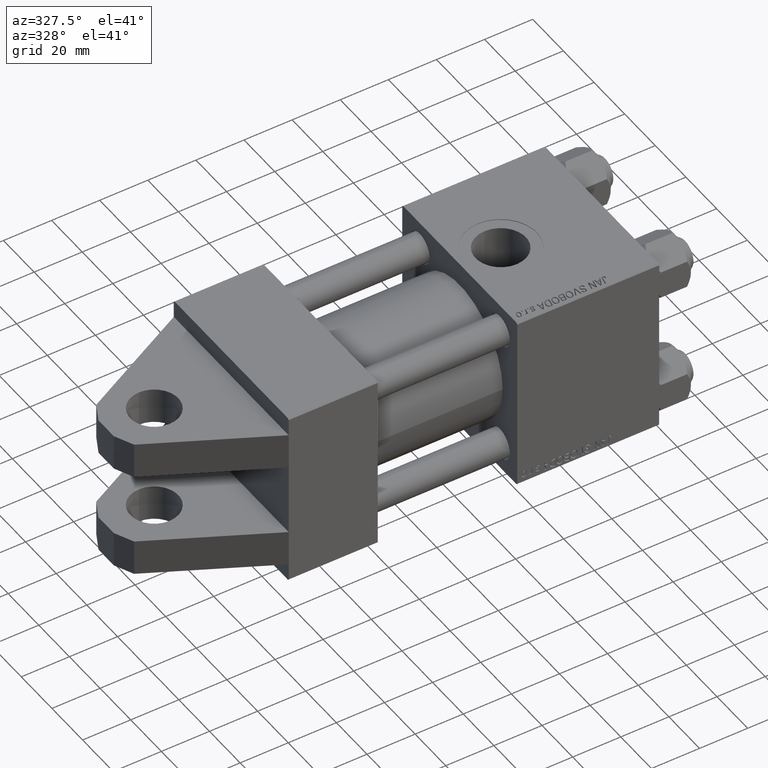
[diagram: clean part render]
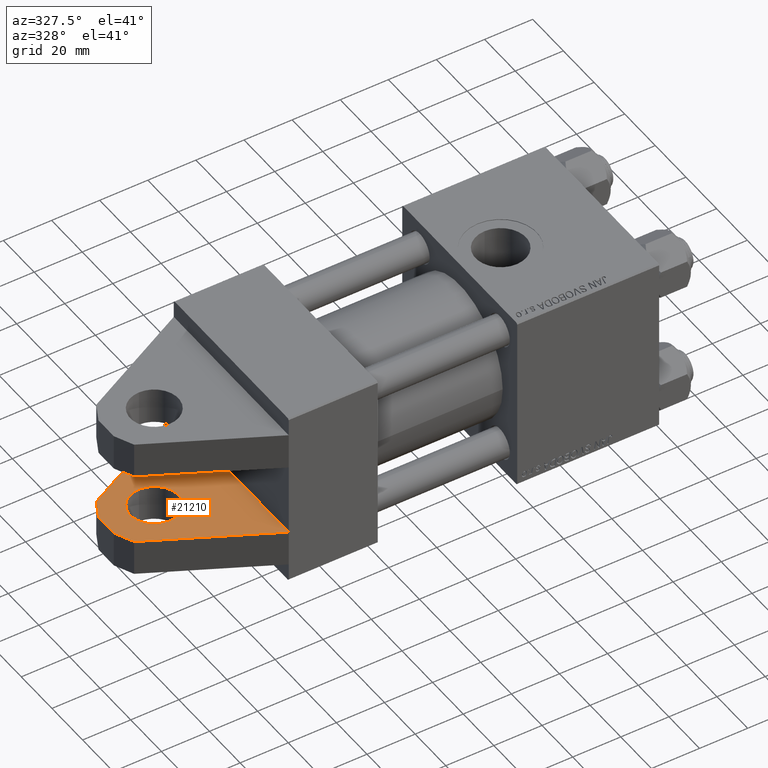
[diagram: same view with one face highlighted and labeled with its STEP entity id]
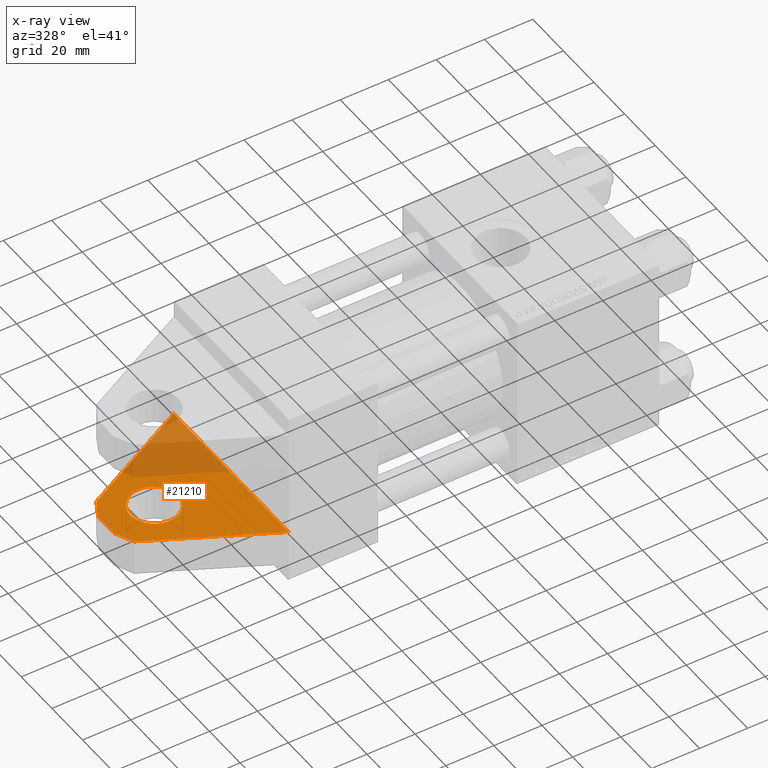
[diagram: x-ray of the same camera — body ghosted, the highlighted face saturated]
A machine part, auxiliary view. The second image highlights one B-rep face of the part: STEP entity #21210.
The next image is the same camera in x-ray: the body ghosted, the highlighted face saturated — about 29% of this face is hidden behind the body in this view.
In plain terms, the highlighted planar face has unit normal (0, 0, -1).
Its self-contained STEP definition (entity closure, byte-faithful):
#48 = VERTEX_POINT ( 'NONE', #27882 ) ;
#1007 = DIRECTION ( 'NONE',  ( -0.8896669897448514774, -0.000000000000000000, 0.4566099510066927158 ) ) ;
#1559 = DIRECTION ( 'NONE',  ( 0.000000000000000000, -0.000000000000000000, 1.000000000000000000 ) ) ;
#2811 = CARTESIAN_POINT ( 'NONE',  ( -52.00000000000000711, 15.00000000000000000, 4.999999999999992895 ) ) ;
#3441 = VERTEX_POINT ( 'NONE', #41139 ) ;
#3463 = ORIENTED_EDGE ( 'NONE', *, *, #22325, .F. ) ;
#4416 = DIRECTION ( 'NONE',  ( 0.000000000000000000, 0.000000000000000000, 1.000000000000000000 ) ) ;
#4662 = LINE ( 'NONE', #4921, #7022 ) ;
#4921 = CARTESIAN_POINT ( 'NONE',  ( -48.43732805352595960, 15.00000000000000000, -12.64017464471899110 ) ) ;
#4945 = PLANE ( 'NONE',  #36379 ) ;
#5154 = CARTESIAN_POINT ( 'NONE',  ( -32.00000000000000000, 15.00000000000000000, 9.999999999999992895 ) ) ;
#5866 = EDGE_LOOP ( 'NONE', ( #48439, #48387 ) ) ;
#5976 = FACE_OUTER_BOUND ( 'NONE', #9133, .T. ) ;
#6185 = CARTESIAN_POINT ( 'NONE',  ( -32.00000000000000000, 15.00000000000000000, -6.938893903907228378E-15 ) ) ;
#6357 = CARTESIAN_POINT ( 'NONE',  ( -48.15077811301358679, 15.00000000000000000, 12.49989272354909353 ) ) ;
#6386 = VERTEX_POINT ( 'NONE', #2811 ) ;
#6879 = LINE ( 'NONE', #38327, #35032 ) ;
#7022 = VECTOR ( 'NONE', #1007, 1000.000000000000000 ) ;
#7369 = VERTEX_POINT ( 'NONE', #25138 ) ;
#8323 = DIRECTION ( 'NONE',  ( 0.000000000000000000, 1.000000000000000000, 0.000000000000000000 ) ) ;
#9133 = EDGE_LOOP ( 'NONE', ( #3463, #46470, #27686, #51084, #13822, #26108 ) ) ;
#9265 = LINE ( 'NONE', #49013, #25728 ) ;
#9831 = DIRECTION ( 'NONE',  ( 0.000000000000000000, 1.000000000000000000, 0.000000000000000000 ) ) ;
#13822 = ORIENTED_EDGE ( 'NONE', *, *, #37637, .F. ) ;
#14804 = CARTESIAN_POINT ( 'NONE',  ( -52.00000000000000711, 15.00000000000000000, -5.000000000000007105 ) ) ;
#14841 = LINE ( 'NONE', #18749, #38085 ) ;
#16717 = CARTESIAN_POINT ( 'NONE',  ( -48.15077811301358679, 15.00000000000000000, 12.49989272354909353 ) ) ;
#16903 = CARTESIAN_POINT ( 'NONE',  ( 0.000000000000000000, 15.00000000000000000, 0.000000000000000000 ) ) ;
#17470 = VERTEX_POINT ( 'NONE', #5154 ) ;
#17674 = EDGE_CURVE ( 'NONE', #17470, #48, #18950, .T. ) ;
#18595 = AXIS2_PLACEMENT_3D ( 'NONE', #48330, #8323, #4416 ) ;
#18749 = CARTESIAN_POINT ( 'NONE',  ( -52.00000000000000711, 15.00000000000000000, 4.999999999999992895 ) ) ;
#18950 = CIRCLE ( 'NONE', #29757, 10.00000000000000000 ) ;
#21210 = ADVANCED_FACE ( 'NONE', ( #5976, #25224 ), #4945, .F. ) ;
#21562 = VECTOR ( 'NONE', #26768, 1000.000000000000114 ) ;
#22325 = EDGE_CURVE ( 'NONE', #6386, #40885, #14841, .T. ) ;
#24520 = LINE ( 'NONE', #16717, #33888 ) ;
#25138 = CARTESIAN_POINT ( 'NONE',  ( -48.43732805352595960, 15.00000000000000000, -12.64017464471899110 ) ) ;
#25224 = FACE_BOUND ( 'NONE', #5866, .T. ) ;
#25728 = VECTOR ( 'NONE', #37329, 1000.000000000000000 ) ;
#26108 = ORIENTED_EDGE ( 'NONE', *, *, #30957, .F. ) ;
#26384 = DIRECTION ( 'NONE',  ( 0.000000000000000000, 0.000000000000000000, 1.000000000000000000 ) ) ;
#26664 = EDGE_CURVE ( 'NONE', #3441, #6386, #6879, .T. ) ;
#26768 = DIRECTION ( 'NONE',  ( -0.4226182617406929465, -0.000000000000000000, 0.9063077870366529343 ) ) ;
#27686 = ORIENTED_EDGE ( 'NONE', *, *, #34589, .F. ) ;
#27882 = CARTESIAN_POINT ( 'NONE',  ( -32.00000000000000000, 15.00000000000000000, -10.00000000000000711 ) ) ;
#28163 = DIRECTION ( 'NONE',  ( 0.8875055616531780656, 0.000000000000000000, 0.4607970030660757943 ) ) ;
#29102 = VERTEX_POINT ( 'NONE', #45943 ) ;
#29757 = AXIS2_PLACEMENT_3D ( 'NONE', #6185, #9831, #34005 ) ;
#30957 = EDGE_CURVE ( 'NONE', #40885, #29102, #24520, .T. ) ;
#32764 = DIRECTION ( 'NONE',  ( -0.000000000000000000, 1.000000000000000000, 0.000000000000000000 ) ) ;
#33888 = VECTOR ( 'NONE', #28163, 1000.000000000000114 ) ;
#34005 = DIRECTION ( 'NONE',  ( 0.000000000000000000, 0.000000000000000000, 1.000000000000000000 ) ) ;
#34589 = EDGE_CURVE ( 'NONE', #7369, #3441, #46242, .T. ) ;
#35032 = VECTOR ( 'NONE', #26384, 1000.000000000000000 ) ;
#36379 = AXIS2_PLACEMENT_3D ( 'NONE', #16903, #32764, #1559 ) ;
#37329 = DIRECTION ( 'NONE',  ( 0.000000000000000000, 0.000000000000000000, -1.000000000000000000 ) ) ;
#37637 = EDGE_CURVE ( 'NONE', #29102, #49125, #9265, .T. ) ;
#38085 = VECTOR ( 'NONE', #42386, 1000.000000000000000 ) ;
#38327 = CARTESIAN_POINT ( 'NONE',  ( -52.00000000000000711, 15.00000000000000000, -5.000000000000007105 ) ) ;
#40885 = VERTEX_POINT ( 'NONE', #6357 ) ;
#40978 = CIRCLE ( 'NONE', #18595, 10.00000000000000000 ) ;
#41139 = CARTESIAN_POINT ( 'NONE',  ( -52.00000000000000711, 15.00000000000000000, -5.000000000000007105 ) ) ;
#41584 = CARTESIAN_POINT ( 'NONE',  ( 0.000000000000000000, 15.00000000000000000, -37.50000000000000000 ) ) ;
#42386 = DIRECTION ( 'NONE',  ( 0.4566099510066921607, 0.000000000000000000, 0.8896669897448518105 ) ) ;
#45943 = CARTESIAN_POINT ( 'NONE',  ( 0.000000000000000000, 15.00000000000000000, 37.50000000000000000 ) ) ;
#46242 = LINE ( 'NONE', #14804, #21562 ) ;
#46470 = ORIENTED_EDGE ( 'NONE', *, *, #26664, .F. ) ;
#48240 = EDGE_CURVE ( 'NONE', #48, #17470, #40978, .T. ) ;
#48330 = CARTESIAN_POINT ( 'NONE',  ( -32.00000000000000000, 15.00000000000000000, -6.938893903907228378E-15 ) ) ;
#48387 = ORIENTED_EDGE ( 'NONE', *, *, #17674, .T. ) ;
#48439 = ORIENTED_EDGE ( 'NONE', *, *, #48240, .T. ) ;
#49013 = CARTESIAN_POINT ( 'NONE',  ( 0.000000000000000000, 15.00000000000000000, 37.49999999999999289 ) ) ;
#49125 = VERTEX_POINT ( 'NONE', #41584 ) ;
#50173 = EDGE_CURVE ( 'NONE', #49125, #7369, #4662, .T. ) ;
#51084 = ORIENTED_EDGE ( 'NONE', *, *, #50173, .F. ) ;